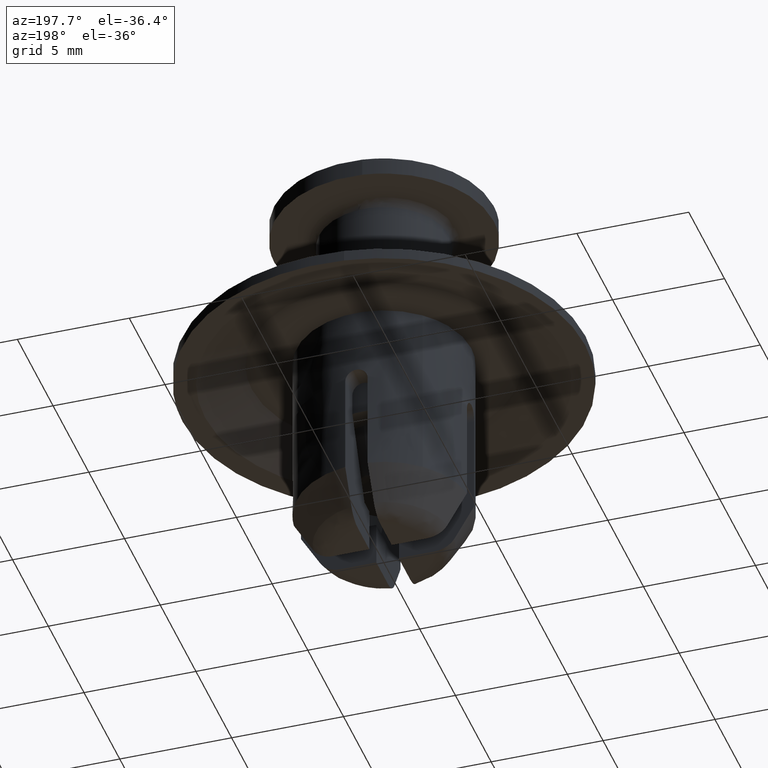
[diagram: clean part render]
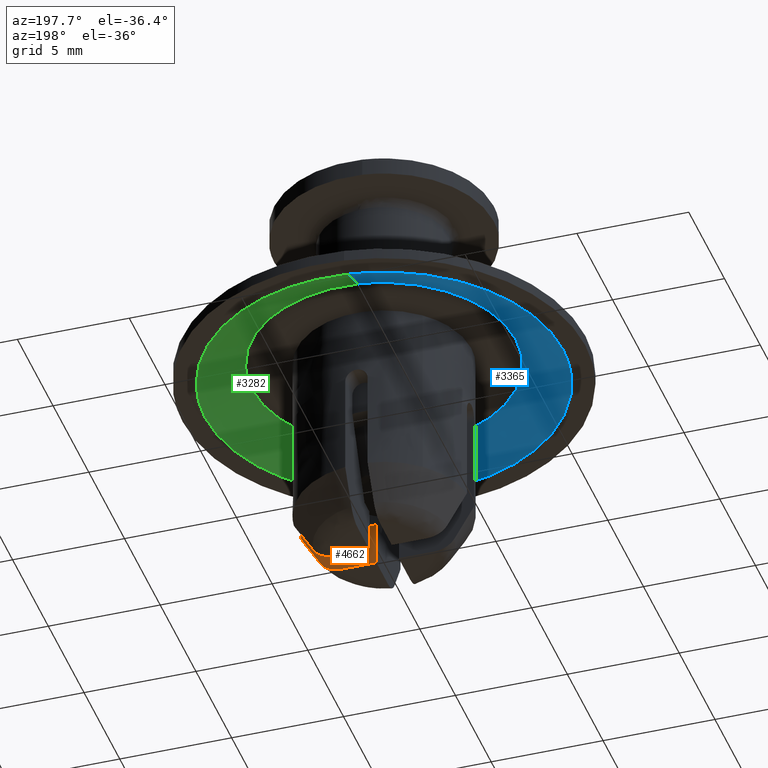
[diagram: same view with three faces highlighted in distinct colors, each labeled with its STEP entity id]
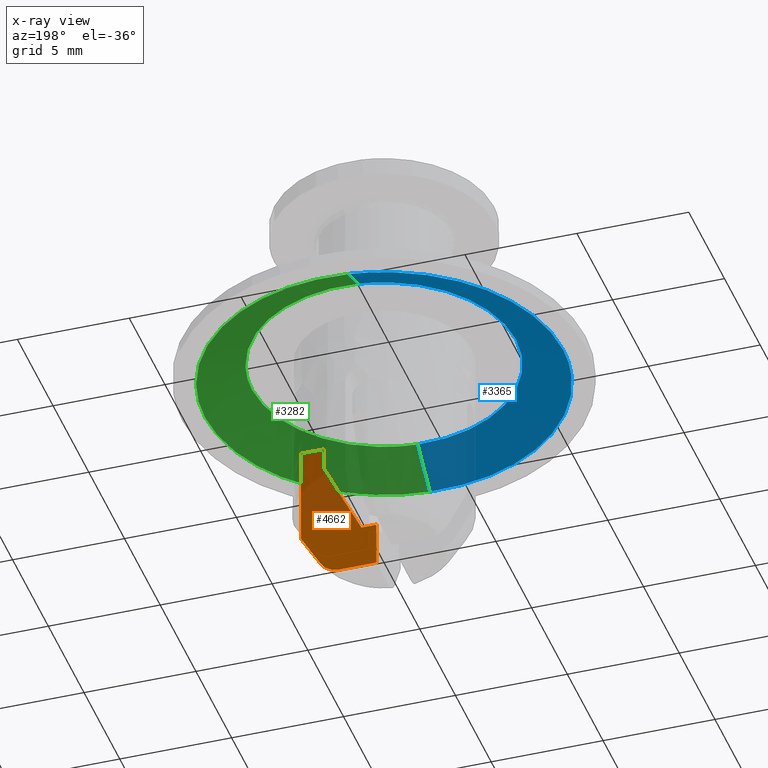
[diagram: x-ray of the same camera — body ghosted, the three highlighted faces saturated]
A machine part, auxiliary view with three faces highlighted in distinct colors.
The next image is the same camera in x-ray (body ghosted, the three faces saturated) — at least one of them is partly hidden behind the body in this view.
Their STEP definitions:

[orange] entity #4662 — the highlighted face is a freeform B-spline surface patch.
#2422=CARTESIAN_POINT('',(2.856570984146635,-0.500000000000000,-11.500001907348681));
#2423=VERTEX_POINT('',#2422);
#2465=CARTESIAN_POINT('',(2.856570984145660,-0.500000000000000,-12.500001907347119));
#2466=VERTEX_POINT('',#2465);
#2467=CARTESIAN_POINT('',(2.856570984146635,-0.500000000000000,-11.500001907348681));
#2468=CARTESIAN_POINT('',(2.856570984145660,-0.500000000000000,-12.500001907347119));
#2469=QUASI_UNIFORM_CURVE('',1,(#2467,#2468),.UNSPECIFIED.,.F.,.U.);
#2470=EDGE_CURVE('',#2423,#2466,#2469,.T.);
#2899=CARTESIAN_POINT('',(3.867815536518810,-0.500000000000000,-16.008142471313501));
#2900=VERTEX_POINT('',#2899);
#2914=CARTESIAN_POINT('',(3.867815536518810,-0.500000000000000,-11.500001907348681));
#2915=VERTEX_POINT('',#2914);
#2916=CARTESIAN_POINT('',(3.867815536518810,-0.500000000000000,-11.500001907348681));
#2917=CARTESIAN_POINT('',(3.867815536518810,-0.500000000000000,-16.008142471313501));
#2918=QUASI_UNIFORM_CURVE('',1,(#2916,#2917),.UNSPECIFIED.,.F.,.U.);
#2919=EDGE_CURVE('',#2915,#2900,#2918,.T.);
#3612=CARTESIAN_POINT('',(1.165173062149000,-0.500000000000000,-16.000001907348651));
#3613=VERTEX_POINT('',#3612);
#3614=CARTESIAN_POINT('',(0.500000000000000,-0.500000000000000,-16.000001907348651));
#3615=VERTEX_POINT('',#3614);
#3616=CARTESIAN_POINT('',(1.165173062149000,-0.500000000000000,-16.000001907348651));
#3617=CARTESIAN_POINT('',(0.500000000000000,-0.500000000000000,-16.000001907348651));
#3618=QUASI_UNIFORM_CURVE('',1,(#3616,#3617),.UNSPECIFIED.,.F.,.U.);
#3619=EDGE_CURVE('',#3613,#3615,#3618,.T.);
#3732=CARTESIAN_POINT('',(2.856570984145659,-0.500000000000000,-12.500001907347119));
#3733=CARTESIAN_POINT('',(2.579352811862211,-0.500000000000000,-13.085595380654670));
#3734=CARTESIAN_POINT('',(2.301320433555810,-0.500000000000000,-13.670801960130239));
#3735=CARTESIAN_POINT('',(1.880506685285272,-0.500000000000000,-14.546822693435759));
#3736=CARTESIAN_POINT('',(1.739596593864866,-0.500000000000000,-14.838526040057300));
#3737=CARTESIAN_POINT('',(1.455144681019923,-0.500000000000000,-15.420682189731149));
#3738=CARTESIAN_POINT('',(1.311740996857906,-0.500000000000000,-15.711157449331170));
#3739=CARTESIAN_POINT('',(1.165173062149000,-0.500000000000000,-16.000001907348651));
#3740=B_SPLINE_CURVE_WITH_KNOTS('',3,(#3732,#3733,#3734,#3735,#3736,#3737,#3738,#3739),.UNSPECIFIED.,.F.,.U.,(4,2,2,4),(0.0,0.500000000000000,0.750000000000000,1.0),.UNSPECIFIED.);
#3741=EDGE_CURVE('',#2466,#3613,#3740,.T.);
#3898=CARTESIAN_POINT('',(2.997256992117011,-0.500000000000000,-17.500000478452801));
#3899=VERTEX_POINT('',#3898);
#3915=CARTESIAN_POINT('',(2.997256992117011,-0.500000000000000,-17.500000478452801));
#3916=CARTESIAN_POINT('',(3.288106275958512,-0.500000000000000,-17.003101403978949));
#3917=CARTESIAN_POINT('',(3.578144203909034,-0.500000000000000,-16.505728112842149));
#3918=CARTESIAN_POINT('',(3.867815536518815,-0.500000000000000,-16.008142471313501));
#3919=QUASI_UNIFORM_CURVE('',3,(#3915,#3916,#3917,#3918),.UNSPECIFIED.,.F.,.U.);
#3920=EDGE_CURVE('',#3899,#2900,#3919,.T.);
#4184=CARTESIAN_POINT('',(0.500000000000000,-0.500000000000000,-18.000001907348651));
#4185=VERTEX_POINT('',#4184);
#4193=CARTESIAN_POINT('',(2.114333309537090,-0.500000000000000,-18.000001907348651));
#4194=VERTEX_POINT('',#4193);
#4195=CARTESIAN_POINT('',(2.114333309537090,-0.500000000000000,-18.000001907348651));
#4196=CARTESIAN_POINT('',(0.500000000000000,-0.500000000000000,-18.000001907348651));
#4197=QUASI_UNIFORM_CURVE('',1,(#4195,#4196),.UNSPECIFIED.,.F.,.U.);
#4198=EDGE_CURVE('',#4194,#4185,#4197,.T.);
#4234=CARTESIAN_POINT('',(2.114333309537091,-0.500000000000000,-18.000001907348651));
#4235=CARTESIAN_POINT('',(2.203652950335433,-0.500000000000000,-18.000001907348651));
#4236=CARTESIAN_POINT('',(2.291162691174230,-0.500000000000000,-17.988827760211901));
#4237=CARTESIAN_POINT('',(2.419383601059607,-0.500000000000000,-17.955596339833338));
#4238=CARTESIAN_POINT('',(2.461928773728302,-0.500000000000000,-17.941613836827859));
#4239=CARTESIAN_POINT('',(2.544406006563243,-0.500000000000000,-17.908390613286379));
#4240=CARTESIAN_POINT('',(2.623987369777101,-0.500000000000000,-17.870129544080370));
#4241=CARTESIAN_POINT('',(2.697895808008509,-0.500000000000000,-17.821999480662789));
#4242=CARTESIAN_POINT('',(2.768883875177865,-0.500000000000000,-17.768788947259040));
#4243=CARTESIAN_POINT('',(2.802968337177969,-0.500000000000000,-17.739525381382741));
#4244=CARTESIAN_POINT('',(2.897700494830295,-0.500000000000000,-17.646614803309902));
#4245=CARTESIAN_POINT('',(2.952110187178889,-0.500000000000000,-17.577131475321959));
#4246=CARTESIAN_POINT('',(2.997256992116969,-0.500000000000000,-17.500000478452790));
#4247=B_SPLINE_CURVE_WITH_KNOTS('',3,(#4234,#4235,#4236,#4237,#4238,#4239,#4240,#4241,#4242,#4243,#4244,#4245,#4246),.UNSPECIFIED.,.F.,.U.,(4,2,2,1,2,2,4),(0.0,0.249999999999998,0.374999999999997,0.499999999999996,0.624999999999995,0.749999999999995,1.0),.UNSPECIFIED.);
#4248=EDGE_CURVE('',#4194,#3899,#4247,.T.);
#4629=CARTESIAN_POINT('',(0.500000000000000,-0.500000000000000,-16.000001907348651));
#4630=CARTESIAN_POINT('',(0.500000000000000,-0.500000000000000,-18.000001907348651));
#4631=QUASI_UNIFORM_CURVE('',1,(#4629,#4630),.UNSPECIFIED.,.F.,.U.);
#4632=EDGE_CURVE('',#3615,#4185,#4631,.T.);
#4642=CARTESIAN_POINT('',(0.331777632510569,-0.500000000000000,-11.175326919946940));
#4643=CARTESIAN_POINT('',(0.331777632510569,-0.500000000000000,-18.324677069093980));
#4644=CARTESIAN_POINT('',(4.036037753455156,-0.500000000000000,-11.175326919946940));
#4645=CARTESIAN_POINT('',(4.036037753455156,-0.500000000000000,-18.324677069093980));
#4646=B_SPLINE_SURFACE_WITH_KNOTS('',1,1,((#4642,#4644),(#4643,#4645)),.UNSPECIFIED.,.F.,.F.,.U.,(2,2),(2,2),(0.0,7.149350149147040),(0.0,3.704260120944587),.UNSPECIFIED.);
#4647=ORIENTED_EDGE('',*,*,#2470,.F.);
#4648=CARTESIAN_POINT('',(2.856570984146635,-0.500000000000000,-11.500001907348681));
#4649=CARTESIAN_POINT('',(3.867815536518810,-0.500000000000000,-11.500001907348681));
#4650=QUASI_UNIFORM_CURVE('',1,(#4648,#4649),.UNSPECIFIED.,.F.,.U.);
#4651=EDGE_CURVE('',#2423,#2915,#4650,.T.);
#4652=ORIENTED_EDGE('',*,*,#4651,.T.);
#4653=ORIENTED_EDGE('',*,*,#2919,.T.);
#4654=ORIENTED_EDGE('',*,*,#3920,.F.);
#4655=ORIENTED_EDGE('',*,*,#4248,.F.);
#4656=ORIENTED_EDGE('',*,*,#4198,.T.);
#4657=ORIENTED_EDGE('',*,*,#4632,.F.);
#4658=ORIENTED_EDGE('',*,*,#3619,.F.);
#4659=ORIENTED_EDGE('',*,*,#3741,.F.);
#4660=EDGE_LOOP('',(#4647,#4652,#4653,#4654,#4655,#4656,#4657,#4658,#4659));
#4661=FACE_OUTER_BOUND('',#4660,.T.);
#4662=ADVANCED_FACE('',(#4661),#4646,.F.);

[blue] entity #3365 — the highlighted face is a freeform B-spline surface patch.
#3202=CARTESIAN_POINT('',(-0.696401939482368,5.858755826743327,-8.000001907350921));
#3203=VERTEX_POINT('',#3202);
#3221=CARTESIAN_POINT('',(-0.944273877267557,7.944076210909631,-9.000001907349549));
#3222=VERTEX_POINT('',#3221);
#3223=CARTESIAN_POINT('',(-0.696401939482368,5.858755826743327,-8.000001907350921));
#3224=CARTESIAN_POINT('',(-0.944273877267557,7.944076210909631,-9.000001907349549));
#3225=QUASI_UNIFORM_CURVE('',1,(#3223,#3224),.UNSPECIFIED.,.F.,.U.);
#3226=EDGE_CURVE('',#3203,#3222,#3225,.T.);
#3245=CARTESIAN_POINT('',(0.488388316307062,-7.985078387377417,-9.000001907350649));
#3246=VERTEX_POINT('',#3245);
#3260=CARTESIAN_POINT('',(0.360186359970616,-5.888994929931085,-8.000001907348871));
#3261=VERTEX_POINT('',#3260);
#3262=CARTESIAN_POINT('',(0.360186359970616,-5.888994929931085,-8.000001907348871));
#3263=CARTESIAN_POINT('',(0.488388316307062,-7.985078387377417,-9.000001907350649));
#3264=QUASI_UNIFORM_CURVE('',1,(#3262,#3263),.UNSPECIFIED.,.F.,.U.);
#3265=EDGE_CURVE('',#3261,#3246,#3264,.T.);
#3283=CARTESIAN_POINT('',(0.356981311059702,-5.836592843494706,-7.975001907348648));
#3284=CARTESIAN_POINT('',(-5.479611532435003,-6.193574154554408,-7.975001907348648));
#3285=CARTESIAN_POINT('',(-5.836592843494706,-0.356981311059702,-7.975001907348648));
#3286=CARTESIAN_POINT('',(-6.173709372574225,5.154825217994777,-7.975001907348648));
#3287=CARTESIAN_POINT('',(-0.690205141003246,5.806622817138393,-7.975001907348650));
#3288=CARTESIAN_POINT('',(0.491673491409335,-8.038790525971944,-9.025626907348652));
#3289=CARTESIAN_POINT('',(-7.547117034562608,-8.530464017381279,-9.025626907348652));
#3290=CARTESIAN_POINT('',(-8.038790525971944,-0.491673491409335,-9.025626907348652));
#3291=CARTESIAN_POINT('',(-8.503104078892374,7.099785994434043,-9.025626907348652));
#3292=CARTESIAN_POINT('',(-0.950625595660339,7.997512545753609,-9.025626907348652));
#3300=(BOUNDED_SURFACE()B_SPLINE_SURFACE(2,1,((#3283,#3288),(#3284,#3289),(#3285,#3290),(#3286,#3291),(#3287,#3292)),.UNSPECIFIED.,.F.,.F.,.U.)B_SPLINE_SURFACE_WITH_KNOTS((3,2,3),(2,2),(0.0,13.343993481435870,26.154227223614310),(0.0,2.443691778187354),.UNSPECIFIED.)GEOMETRIC_REPRESENTATION_ITEM()RATIONAL_B_SPLINE_SURFACE(((1.0,1.0),(0.707106781186548,0.707106781186548),(1.0,1.0),(0.718822509939086,0.718822509939086),(0.977505800795127,0.977505800795127)))REPRESENTATION_ITEM('')SURFACE());
#3301=CARTESIAN_POINT('',(-5.899999618530280,0.0,-8.000001907348649));
#3302=VERTEX_POINT('',#3301);
#3303=CARTESIAN_POINT('',(-5.899999618530280,0.0,-8.000001907348649));
#3304=CARTESIAN_POINT('',(-5.899999618530279,5.240229364241182,-8.000001907348649));
#3305=CARTESIAN_POINT('',(-0.696401939482368,5.858755826743327,-8.000001907350921));
#3313=(BOUNDED_CURVE()B_SPLINE_CURVE(2,(#3303,#3304,#3305),.UNSPECIFIED.,.F.,.U.)B_SPLINE_CURVE_WITH_KNOTS((3,3),(0.0,0.229562473513716),.UNSPECIFIED.)CURVE()GEOMETRIC_REPRESENTATION_ITEM()RATIONAL_B_SPLINE_CURVE((1.0,0.731050832855159,0.956026754184107))REPRESENTATION_ITEM(''));
#3314=EDGE_CURVE('',#3302,#3203,#3313,.T.);
#3315=ORIENTED_EDGE('',*,*,#3314,.F.);
#3316=CARTESIAN_POINT('',(0.360186359970616,-5.888994929931085,-8.000001907348871));
#3317=CARTESIAN_POINT('',(0.180261291809830,-5.899999618530281,-8.000001907348649));
#3318=CARTESIAN_POINT('',(0.0,-5.899999618530280,-8.000001907348649));
#3319=CARTESIAN_POINT('',(-5.899999618530279,-5.899999618530279,-8.000001907348651));
#3320=CARTESIAN_POINT('',(-5.899999618530280,0.0,-8.000001907348649));
#3328=(BOUNDED_CURVE()B_SPLINE_CURVE(2,(#3316,#3317,#3318,#3319,#3320),.UNSPECIFIED.,.F.,.U.)B_SPLINE_CURVE_WITH_KNOTS((3,2,3),(0.739332962241787,0.750000000000000,1.0),.UNSPECIFIED.)CURVE()GEOMETRIC_REPRESENTATION_ITEM()RATIONAL_B_SPLINE_CURVE((0.976072041672812,0.987502787903169,1.0,0.707106781186548,1.0))REPRESENTATION_ITEM(''));
#3329=EDGE_CURVE('',#3261,#3302,#3328,.T.);
#3330=ORIENTED_EDGE('',*,*,#3329,.F.);
#3331=ORIENTED_EDGE('',*,*,#3265,.T.);
#3332=CARTESIAN_POINT('',(-8.0,0.0,-9.000001907348651));
#3333=VERTEX_POINT('',#3332);
#3334=CARTESIAN_POINT('',(0.488388316307062,-7.985078387377417,-9.000001907350649));
#3335=CARTESIAN_POINT('',(0.244422106416739,-8.0,-9.000001907348652));
#3336=CARTESIAN_POINT('',(0.0,-8.0,-9.000001907348651));
#3337=CARTESIAN_POINT('',(-8.0,-8.0,-9.000001907348651));
#3338=CARTESIAN_POINT('',(-8.0,0.0,-9.000001907348651));
#3346=(BOUNDED_CURVE()B_SPLINE_CURVE(2,(#3334,#3335,#3336,#3337,#3338),.UNSPECIFIED.,.F.,.U.)B_SPLINE_CURVE_WITH_KNOTS((3,2,3),(0.739332962240760,0.750000000000000,1.0),.UNSPECIFIED.)CURVE()GEOMETRIC_REPRESENTATION_ITEM()RATIONAL_B_SPLINE_CURVE((0.976072041670613,0.987502787901967,1.0,0.707106781186548,1.0))REPRESENTATION_ITEM(''));
#3347=EDGE_CURVE('',#3246,#3333,#3346,.T.);
#3348=ORIENTED_EDGE('',*,*,#3347,.T.);
#3349=CARTESIAN_POINT('',(-8.0,0.0,-9.000001907348651));
#3350=CARTESIAN_POINT('',(-8.0,7.105396207587043,-9.000001907348651));
#3351=CARTESIAN_POINT('',(-0.944273877267557,7.944076210909631,-9.000001907349549));
#3359=(BOUNDED_CURVE()B_SPLINE_CURVE(2,(#3349,#3350,#3351),.UNSPECIFIED.,.F.,.U.)B_SPLINE_CURVE_WITH_KNOTS((3,3),(0.0,0.229562473515080),.UNSPECIFIED.)CURVE()GEOMETRIC_REPRESENTATION_ITEM()RATIONAL_B_SPLINE_CURVE((1.0,0.731050832853561,0.956026754186780))REPRESENTATION_ITEM(''));
#3360=EDGE_CURVE('',#3333,#3222,#3359,.T.);
#3361=ORIENTED_EDGE('',*,*,#3360,.T.);
#3362=ORIENTED_EDGE('',*,*,#3226,.F.);
#3363=EDGE_LOOP('',(#3315,#3330,#3331,#3348,#3361,#3362));
#3364=FACE_OUTER_BOUND('',#3363,.T.);
#3365=ADVANCED_FACE('',(#3364),#3300,.F.);

[green] entity #3282 — the highlighted face is a freeform B-spline surface patch.
#3180=CARTESIAN_POINT('',(-0.690205141003246,5.806622817138393,-7.975001907348650));
#3181=CARTESIAN_POINT('',(-0.524022090670636,5.826376191741722,-7.975001907348648));
#3182=CARTESIAN_POINT('',(-0.356981311059702,5.836592843494706,-7.975001907348648));
#3183=CARTESIAN_POINT('',(5.479611532435003,6.193574154554408,-7.975001907348648));
#3184=CARTESIAN_POINT('',(5.836592843494706,0.356981311059702,-7.975001907348648));
#3185=CARTESIAN_POINT('',(6.193574154554408,-5.479611532435003,-7.975001907348648));
#3186=CARTESIAN_POINT('',(0.356981311059702,-5.836592843494706,-7.975001907348648));
#3187=CARTESIAN_POINT('',(-0.950625595660339,7.997512545753609,-9.025626907348652));
#3188=CARTESIAN_POINT('',(-0.721740222564651,8.024719041885028,-9.025626907348652));
#3189=CARTESIAN_POINT('',(-0.491673491409335,8.038790525971944,-9.025626907348652));
#3190=CARTESIAN_POINT('',(7.547117034562608,8.530464017381279,-9.025626907348652));
#3191=CARTESIAN_POINT('',(8.038790525971944,0.491673491409335,-9.025626907348652));
#3192=CARTESIAN_POINT('',(8.530464017381279,-7.547117034562608,-9.025626907348652));
#3193=CARTESIAN_POINT('',(0.491673491409335,-8.038790525971944,-9.025626907348652));
#3201=(BOUNDED_SURFACE()B_SPLINE_SURFACE(2,1,((#3180,#3187),(#3181,#3188),(#3182,#3189),(#3183,#3190),(#3184,#3191),(#3185,#3192),(#3186,#3193)),.UNSPECIFIED.,.F.,.F.,.U.)B_SPLINE_SURFACE_WITH_KNOTS((3,2,2,3),(2,2),(0.0,0.533759739257436,13.877753220693309,27.221746702129192),(0.0,2.443691778187354),.UNSPECIFIED.)GEOMETRIC_REPRESENTATION_ITEM()RATIONAL_B_SPLINE_SURFACE(((0.977505800795127,0.977505800795127),(0.988284271247462,0.988284271247462),(1.0,1.0),(0.707106781186548,0.707106781186548),(1.0,1.0),(0.707106781186548,0.707106781186548),(1.0,1.0)))REPRESENTATION_ITEM('')SURFACE());
#3202=CARTESIAN_POINT('',(-0.696401939482368,5.858755826743327,-8.000001907350921));
#3203=VERTEX_POINT('',#3202);
#3204=CARTESIAN_POINT('',(5.899999618530280,0.0,-8.000001907348649));
#3205=VERTEX_POINT('',#3204);
#3206=CARTESIAN_POINT('',(-0.696401939482368,5.858755826743327,-8.000001907350921));
#3207=CARTESIAN_POINT('',(-0.349422283387831,5.899999618530280,-8.000001907348649));
#3208=CARTESIAN_POINT('',(0.0,5.899999618530280,-8.000001907348649));
#3209=CARTESIAN_POINT('',(5.899999618530279,5.899999618530279,-8.000001907348651));
#3210=CARTESIAN_POINT('',(5.899999618530280,0.0,-8.000001907348649));
#3218=(BOUNDED_CURVE()B_SPLINE_CURVE(2,(#3206,#3207,#3208,#3209,#3210),.UNSPECIFIED.,.F.,.U.)B_SPLINE_CURVE_WITH_KNOTS((3,2,3),(0.229562473513716,0.250000000000000,0.500000000000000),.UNSPECIFIED.)CURVE()GEOMETRIC_REPRESENTATION_ITEM()RATIONAL_B_SPLINE_CURVE((0.956026754184107,0.976055948331389,1.0,0.707106781186548,1.0))REPRESENTATION_ITEM(''));
#3219=EDGE_CURVE('',#3203,#3205,#3218,.T.);
#3220=ORIENTED_EDGE('',*,*,#3219,.F.);
#3221=CARTESIAN_POINT('',(-0.944273877267557,7.944076210909631,-9.000001907349549));
#3222=VERTEX_POINT('',#3221);
#3223=CARTESIAN_POINT('',(-0.696401939482368,5.858755826743327,-8.000001907350921));
#3224=CARTESIAN_POINT('',(-0.944273877267557,7.944076210909631,-9.000001907349549));
#3225=QUASI_UNIFORM_CURVE('',1,(#3223,#3224),.UNSPECIFIED.,.F.,.U.);
#3226=EDGE_CURVE('',#3203,#3222,#3225,.T.);
#3227=ORIENTED_EDGE('',*,*,#3226,.T.);
#3228=CARTESIAN_POINT('',(8.0,0.0,-9.000001907348651));
#3229=VERTEX_POINT('',#3228);
#3230=CARTESIAN_POINT('',(-0.944273877267557,7.944076210909631,-9.000001907349549));
#3231=CARTESIAN_POINT('',(-0.473792957228687,8.0,-9.000001907348649));
#3232=CARTESIAN_POINT('',(0.0,8.0,-9.000001907348651));
#3233=CARTESIAN_POINT('',(8.0,8.0,-9.000001907348651));
#3234=CARTESIAN_POINT('',(8.0,0.0,-9.000001907348651));
#3242=(BOUNDED_CURVE()B_SPLINE_CURVE(2,(#3230,#3231,#3232,#3233,#3234),.UNSPECIFIED.,.F.,.U.)B_SPLINE_CURVE_WITH_KNOTS((3,2,3),(0.229562473515080,0.250000000000000,0.500000000000000),.UNSPECIFIED.)CURVE()GEOMETRIC_REPRESENTATION_ITEM()RATIONAL_B_SPLINE_CURVE((0.956026754186780,0.976055948332986,1.0,0.707106781186548,1.0))REPRESENTATION_ITEM(''));
#3243=EDGE_CURVE('',#3222,#3229,#3242,.T.);
#3244=ORIENTED_EDGE('',*,*,#3243,.T.);
#3245=CARTESIAN_POINT('',(0.488388316307062,-7.985078387377417,-9.000001907350649));
#3246=VERTEX_POINT('',#3245);
#3247=CARTESIAN_POINT('',(8.0,0.0,-9.000001907348651));
#3248=CARTESIAN_POINT('',(8.000000000000002,-7.525648535192821,-9.000001907348651));
#3249=CARTESIAN_POINT('',(0.488388316307062,-7.985078387377417,-9.000001907350649));
#3257=(BOUNDED_CURVE()B_SPLINE_CURVE(2,(#3247,#3248,#3249),.UNSPECIFIED.,.F.,.U.)B_SPLINE_CURVE_WITH_KNOTS((3,3),(0.500000000000000,0.739332962240761),.UNSPECIFIED.)CURVE()GEOMETRIC_REPRESENTATION_ITEM()RATIONAL_B_SPLINE_CURVE((1.0,0.719603993284580,0.976072041670615))REPRESENTATION_ITEM(''));
#3258=EDGE_CURVE('',#3229,#3246,#3257,.T.);
#3259=ORIENTED_EDGE('',*,*,#3258,.T.);
#3260=CARTESIAN_POINT('',(0.360186359970616,-5.888994929931085,-8.000001907348871));
#3261=VERTEX_POINT('',#3260);
#3262=CARTESIAN_POINT('',(0.360186359970616,-5.888994929931085,-8.000001907348871));
#3263=CARTESIAN_POINT('',(0.488388316307062,-7.985078387377417,-9.000001907350649));
#3264=QUASI_UNIFORM_CURVE('',1,(#3262,#3263),.UNSPECIFIED.,.F.,.U.);
#3265=EDGE_CURVE('',#3261,#3246,#3264,.T.);
#3266=ORIENTED_EDGE('',*,*,#3265,.F.);
#3267=CARTESIAN_POINT('',(5.899999618530280,0.0,-8.000001907348649));
#3268=CARTESIAN_POINT('',(5.899999618530280,-5.550165435886885,-8.000001907348649));
#3269=CARTESIAN_POINT('',(0.360186359970616,-5.888994929931085,-8.000001907348871));
#3277=(BOUNDED_CURVE()B_SPLINE_CURVE(2,(#3267,#3268,#3269),.UNSPECIFIED.,.F.,.U.)B_SPLINE_CURVE_WITH_KNOTS((3,3),(0.500000000000000,0.739332962241787),.UNSPECIFIED.)CURVE()GEOMETRIC_REPRESENTATION_ITEM()RATIONAL_B_SPLINE_CURVE((1.0,0.719603993283378,0.976072041672814))REPRESENTATION_ITEM(''));
#3278=EDGE_CURVE('',#3205,#3261,#3277,.T.);
#3279=ORIENTED_EDGE('',*,*,#3278,.F.);
#3280=EDGE_LOOP('',(#3220,#3227,#3244,#3259,#3266,#3279));
#3281=FACE_OUTER_BOUND('',#3280,.T.);
#3282=ADVANCED_FACE('',(#3281),#3201,.F.);